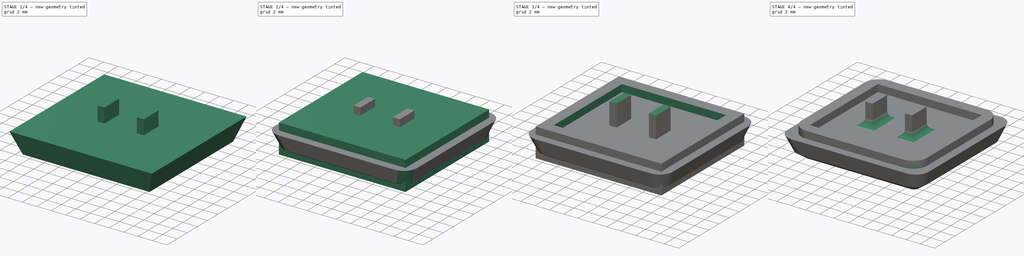
[diagram: build sequence overview — one tinted view per stage of 4, left to right]
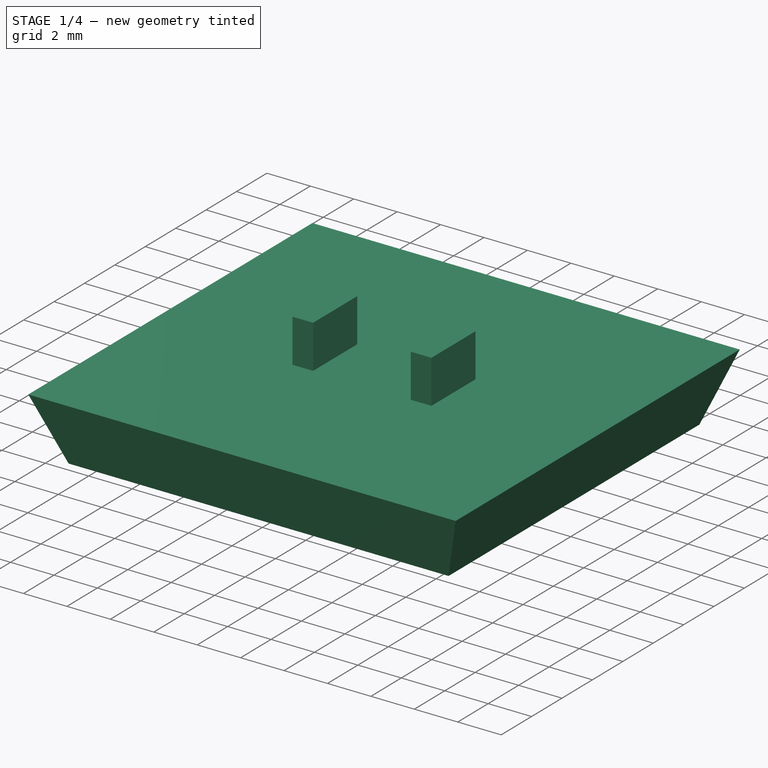
[diagram: stage 1 of 4 — iso view after this stage's code; geometry added in this stage tinted green]
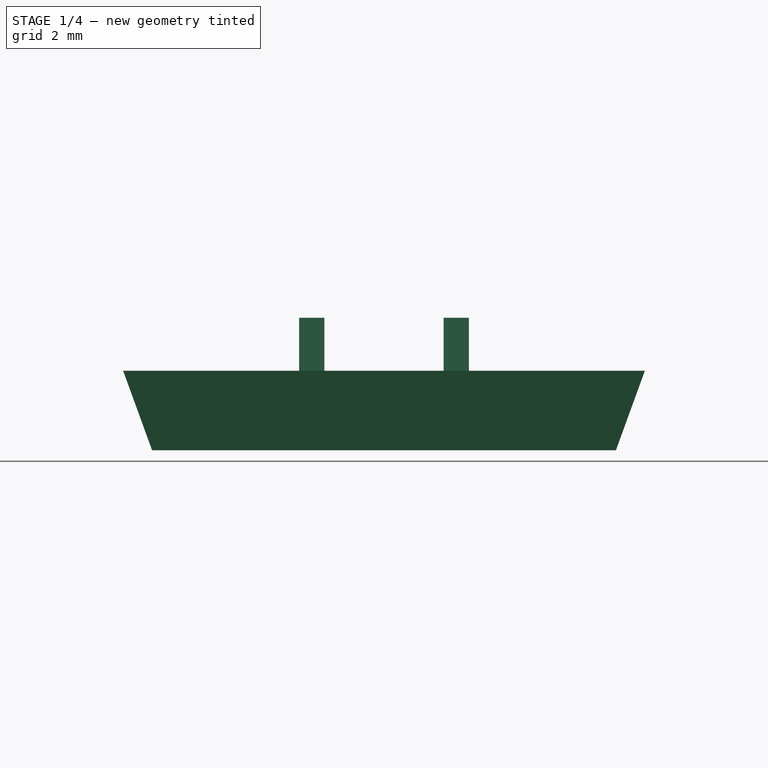
[diagram: stage 1 of 4 — front view after this stage's code; geometry added in this stage tinted green]
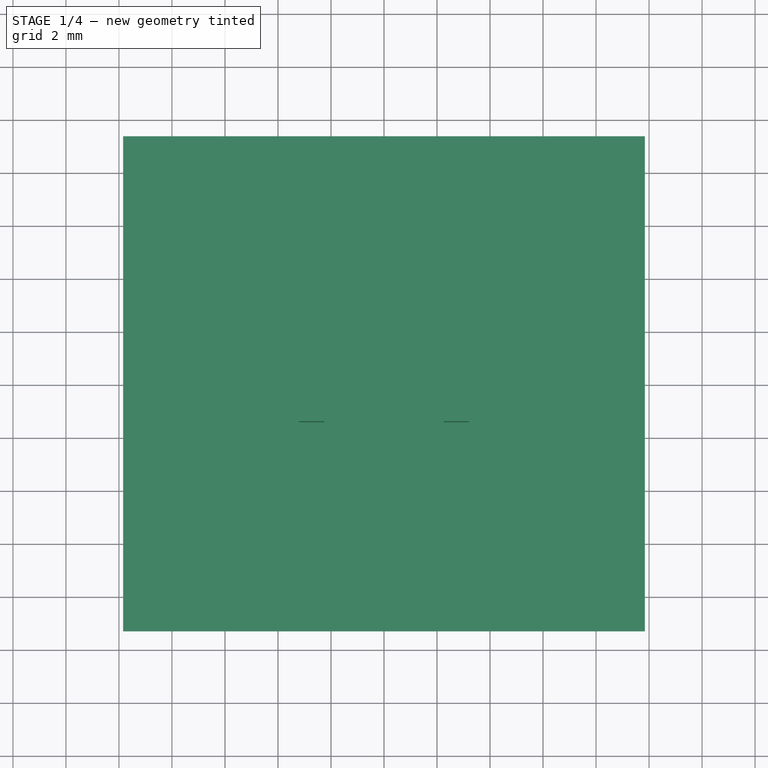
[diagram: stage 1 of 4 — top view after this stage's code; geometry added in this stage tinted green]
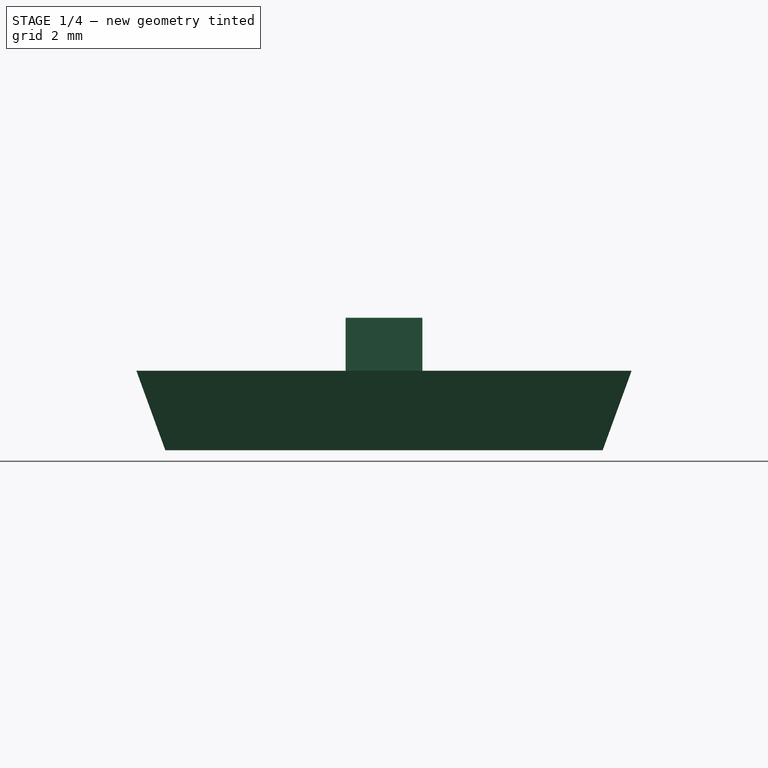
[diagram: stage 1 of 4 — right view after this stage's code; geometry added in this stage tinted green]
FCSTD DOCUMENT  (FreeCAD 1.0R39109 (Git))
Label: choc_keycap
License: All rights reserved
LicenseURL: https://en.wikipedia.org/wiki/All_rights_reserved
objects: Sketcher::SketchObject×6, PartDesign::Pad×4, PartDesign::Fillet×3, PartDesign::ShapeBinder×3, PartDesign::Chamfer×2, PartDesign::Body×2, PartDesign::Pocket×1, PartDesign::Draft×1
note: 50 computed .brp shape members not serialized (recipe doc carries the construction recipe); baked Part::Feature solids carry a one-line shape summary decoded from their .brp

FEATURE [Sketcher::SketchObject] Sketch004
  ArcFitTolerance = 1e-06
  AttachmentSupport = -> [XY_Plane001]
  FullyConstrained = true
  MakeInternals = false
  MapMode = 5
  sketch-geometry (4):
    g0: LineSegment StartX=-8.75 StartY=8.25 StartZ=0 EndX=-8.75 EndY=-8.25 EndZ=0
    g1: LineSegment StartX=-8.75 StartY=-8.25 StartZ=0 EndX=8.75 EndY=-8.25 EndZ=0
    g2: LineSegment StartX=8.75 StartY=-8.25 StartZ=0 EndX=8.75 EndY=8.25 EndZ=0
    g3: LineSegment StartX=8.75 StartY=8.25 StartZ=0 EndX=-8.75 EndY=8.25 EndZ=0
  constraints (10):
    c: Coincident(g0,g1)
    c: Coincident(g1,g2)
    c: Coincident(g2,g3)
    c: Coincident(g3,g0)
    c: Vertical(g2)
    c: Horizontal(g1)
    c: Distance(g0,g2) = 17.5
    c: Distance(g1,g3) = 16.5
    c: Symmetric(g0,g0,g-1)
    c: Symmetric(g0,g2,g-2)
FEATURE [PartDesign::Pad] Pad002
  Direction = (0,0,1)
  Length = 3
  Length2 = 10
  Profile = -> Sketch004
  ReferenceAxis = -> Sketch004 [N_Axis]
  Refine = true
  Suppressed = false
  Type = 0
FEATURE [PartDesign::ShapeBinder] ReferencePad002
  Placement = pos=(0,0,3) rot=(0,0,1;0rad)
  Support = -> [Pad002]
  TraceSupport = false
FEATURE [Sketcher::SketchObject] Sketch005
  ArcFitTolerance = 1e-06
  AttachmentSupport = -> [ReferencePad002]
  FullyConstrained = true
  MakeInternals = false
  MapMode = 5
  Placement = pos=(0,0,3) rot=(0,0,1;0rad)
FEATURE [PartDesign::ShapeBinder] CopyPad002
  Placement = pos=(0,0,3) rot=(0,0,1;0rad)
  TraceSupport = false
FEATURE [PartDesign::ShapeBinder] ReferencePad003
  Placement = pos=(0,0,3) rot=(0,0,1;0rad)
  Support = -> [Pad002]
  TraceSupport = false
FEATURE [PartDesign::Body] Body  label="complicated"
  AllowCompound = false
  Group = -> [Sketch,Pad,Sketch002,Pocket,Sketch003,Pad001,Fillet,Fillet001,Chamfer,ReferencePad002,Sketch005,CopyPad002,ReferencePad003]
  Origin = -> Origin
  Tip = -> Chamfer
FEATURE [Sketcher::SketchObject] Sketch006
  ArcFitTolerance = 1e-06
  AttachmentSupport = -> [Pad002]
  FullyConstrained = true
  MakeInternals = false
  MapMode = 5
  Placement = pos=(0,0,3) rot=(0,0,1;0rad)
  sketch-geometry (8):
    g0: LineSegment StartX=-3.2 StartY=1.45 StartZ=0 EndX=-3.2 EndY=-1.45 EndZ=0
    g1: LineSegment StartX=-3.2 StartY=-1.45 StartZ=0 EndX=-2.25 EndY=-1.45 EndZ=0
    g2: LineSegment StartX=-2.25 StartY=-1.45 StartZ=0 EndX=-2.25 EndY=1.45 EndZ=0
    g3: LineSegment StartX=-2.25 StartY=1.45 StartZ=0 EndX=-3.2 EndY=1.45 EndZ=0
    g4: LineSegment StartX=2.25 StartY=1.45 StartZ=0 EndX=2.25 EndY=-1.45 EndZ=0
    g5: LineSegment StartX=2.25 StartY=-1.45 StartZ=0 EndX=3.2 EndY=-1.45 EndZ=0
    g6: LineSegment StartX=3.2 StartY=-1.45 StartZ=0 EndX=3.2 EndY=1.45 EndZ=0
    g7: LineSegment StartX=3.2 StartY=1.45 StartZ=0 EndX=2.25 EndY=1.45 EndZ=0
  constraints (22):
    c: Coincident(g0,g1)
    c: Coincident(g1,g2)
    c: Coincident(g2,g3)
    c: Coincident(g3,g0)
    c: Vertical(g0)
    c: Horizontal(g1)
    c: Horizontal(g3)
    c: Distance(g0,g2) = 0.95
    c: Distance(g1,g3) = 2.9
    c: Coincident(g4,g5)
    c: Coincident(g5,g6)
    c: Coincident(g6,g7)
    c: Coincident(g7,g4)
    c: Vertical(g4)
    c: Vertical(g6)
    c: Horizontal(g5)
    c: Horizontal(g7)
    c: Distance(g4,g6) = 0.95
    c: Distance(g5,g7) = 2.9
    c: DistanceX(g2,g4) = 4.5
    c: Symmetric(g2,g1,g-1)
    c: Symmetric(g2,g4,g-2)
FEATURE [PartDesign::Pad] Pad003
  BaseFeature = -> Pad002
  Direction = (0,0,1)
  Length = 2
  Length2 = 10
  Profile = -> Sketch006
  ReferenceAxis = -> Sketch006 [N_Axis]
  Refine = true
  Suppressed = false
  Type = 0
FEATURE [PartDesign::Draft] Draft
  Angle = 20
  Base = -> Pad003 [Face1,Face3,Face6,Face2]
  BaseFeature = -> Pad003
  NeutralPlane = -> Pad003 [Face4]
  Refine = true
  Reversed = true
  SupportTransform = false
  Suppressed = false
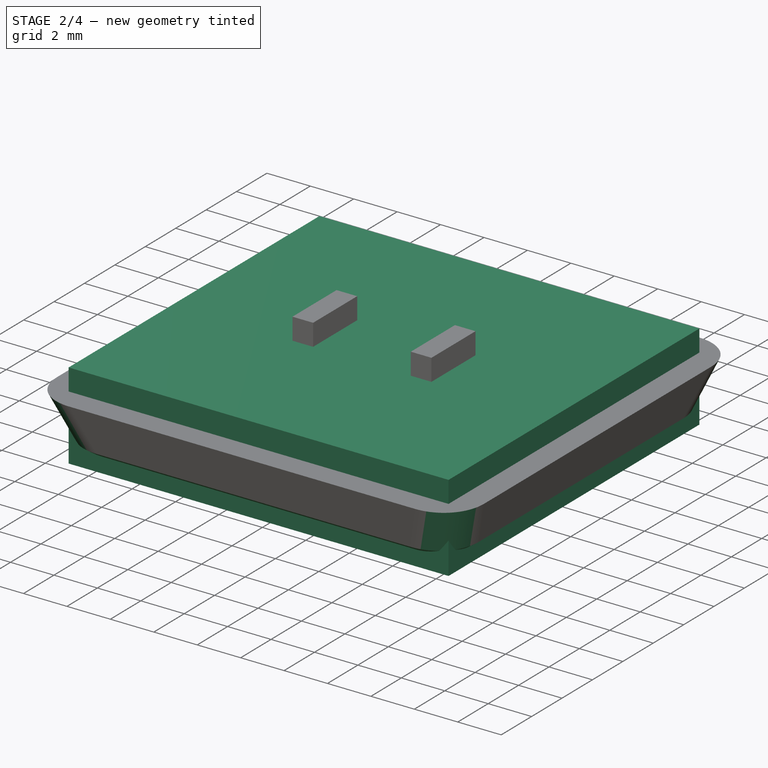
[diagram: stage 2 of 4 — iso view after this stage's code; geometry added in this stage tinted green]
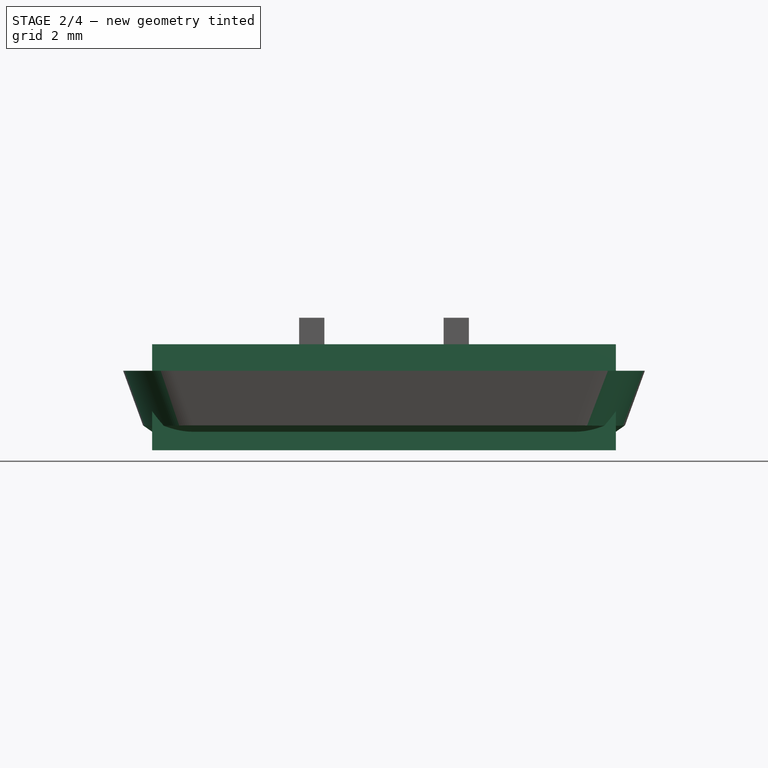
[diagram: stage 2 of 4 — front view after this stage's code; geometry added in this stage tinted green]
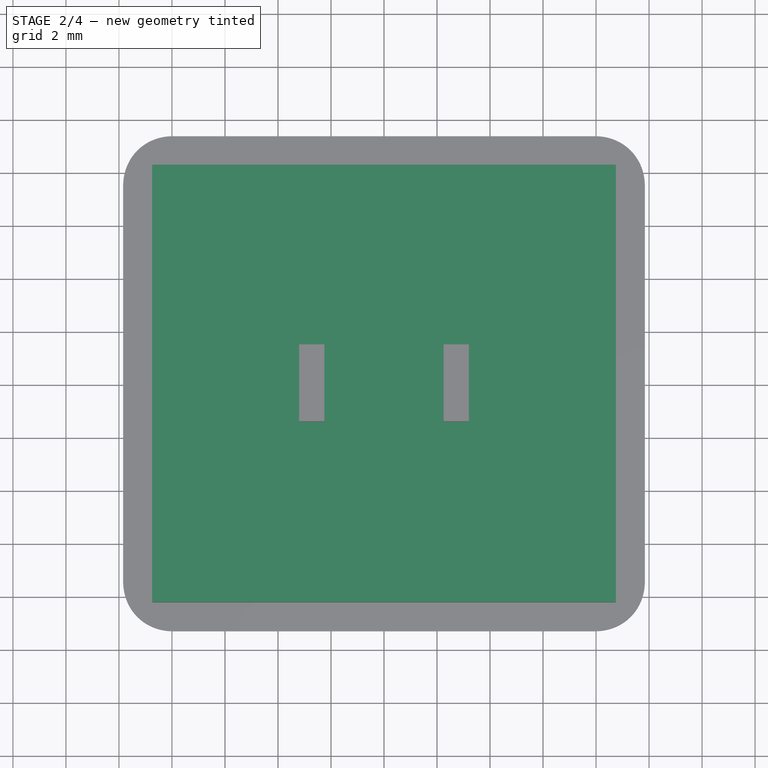
[diagram: stage 2 of 4 — top view after this stage's code; geometry added in this stage tinted green]
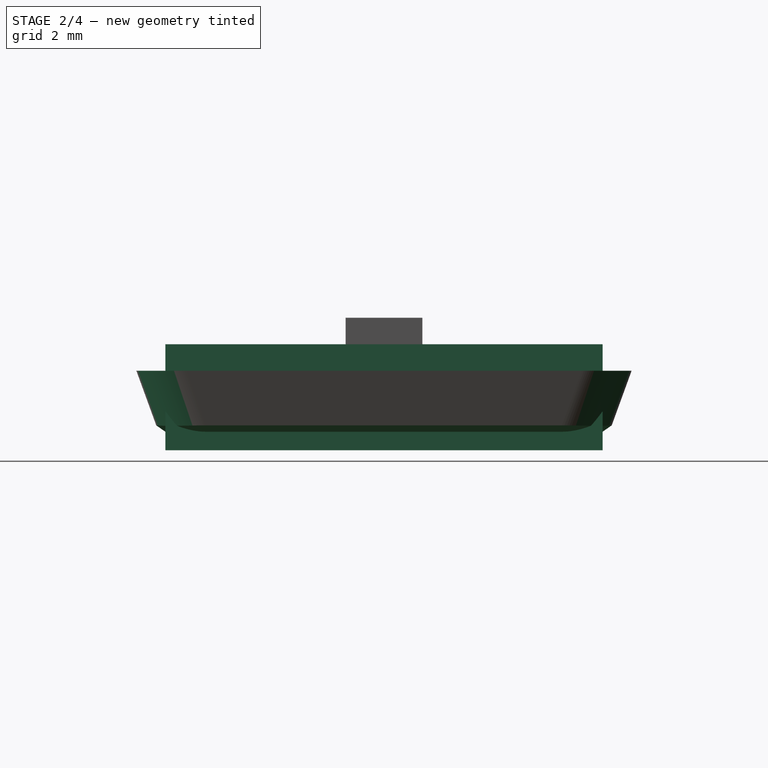
[diagram: stage 2 of 4 — right view after this stage's code; geometry added in this stage tinted green]
FEATURE [Sketcher::SketchObject] Sketch
  ArcFitTolerance = 1e-06
  AttachmentSupport = -> [XY_Plane]
  FullyConstrained = true
  MakeInternals = false
  MapMode = 5
  sketch-geometry (4):
    g0: LineSegment StartX=-8.75 StartY=8.25 StartZ=0 EndX=-8.75 EndY=-8.25 EndZ=0
    g1: LineSegment StartX=-8.75 StartY=-8.25 StartZ=0 EndX=8.75 EndY=-8.25 EndZ=0
    g2: LineSegment StartX=8.75 StartY=-8.25 StartZ=0 EndX=8.75 EndY=8.25 EndZ=0
    g3: LineSegment StartX=8.75 StartY=8.25 StartZ=0 EndX=-8.75 EndY=8.25 EndZ=0
  constraints (10):
    c: Coincident(g0,g1)
    c: Coincident(g1,g2)
    c: Coincident(g2,g3)
    c: Coincident(g3,g0)
    c: Vertical(g2)
    c: Horizontal(g1)
    c: Distance(g0,g2) = 17.5
    c: Distance(g1,g3) = 16.5
    c: Symmetric(g0,g0,g-1)
    c: Symmetric(g0,g2,g-2)
FEATURE [PartDesign::Pad] Pad
  Direction = (0,0,1)
  Length = 4
  Length2 = 10
  Profile = -> Sketch
  ReferenceAxis = -> Sketch [N_Axis]
  Refine = true
  Suppressed = false
  Type = 0
FEATURE [PartDesign::Fillet] Fillet002
  Base = -> Draft [Edge2,Edge8,Edge5,Edge1]
  BaseFeature = -> Draft
  Radius = 2
  Refine = true
  SupportTransform = false
  Suppressed = false
  UseAllEdges = false
FEATURE [PartDesign::Chamfer] Chamfer001
  Angle = 45
  Base = -> Fillet002 [Face2]
  BaseFeature = -> Fillet002
  ChamferType = 0
  FlipDirection = false
  Refine = true
  Size = 1
  Size2 = 1
  SupportTransform = false
  Suppressed = false
  UseAllEdges = false
FEATURE [PartDesign::Body] Body001  label="simple"
  AllowCompound = false
  Group = -> [Sketch004,Pad002,Sketch006,Pad003,Draft,Fillet002,Chamfer001]
  Origin = -> Origin001
  Tip = -> Chamfer001
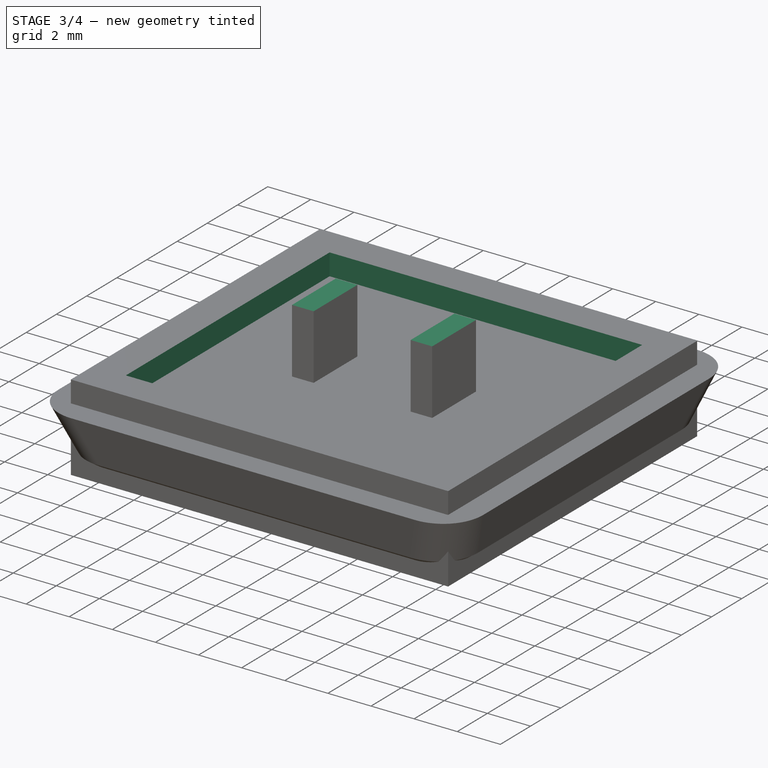
[diagram: stage 3 of 4 — iso view after this stage's code; geometry added in this stage tinted green]
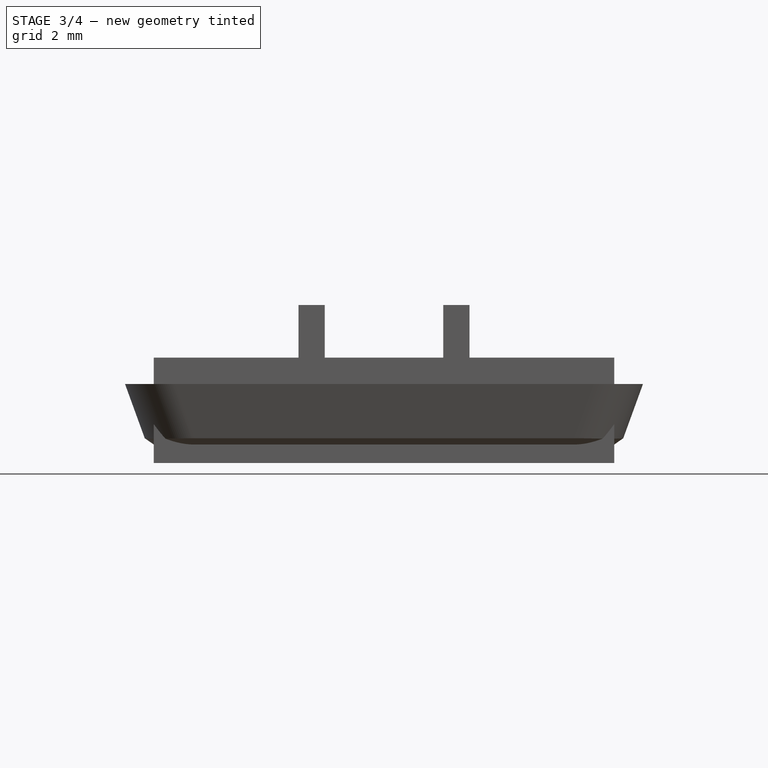
[diagram: stage 3 of 4 — front view after this stage's code; geometry added in this stage tinted green]
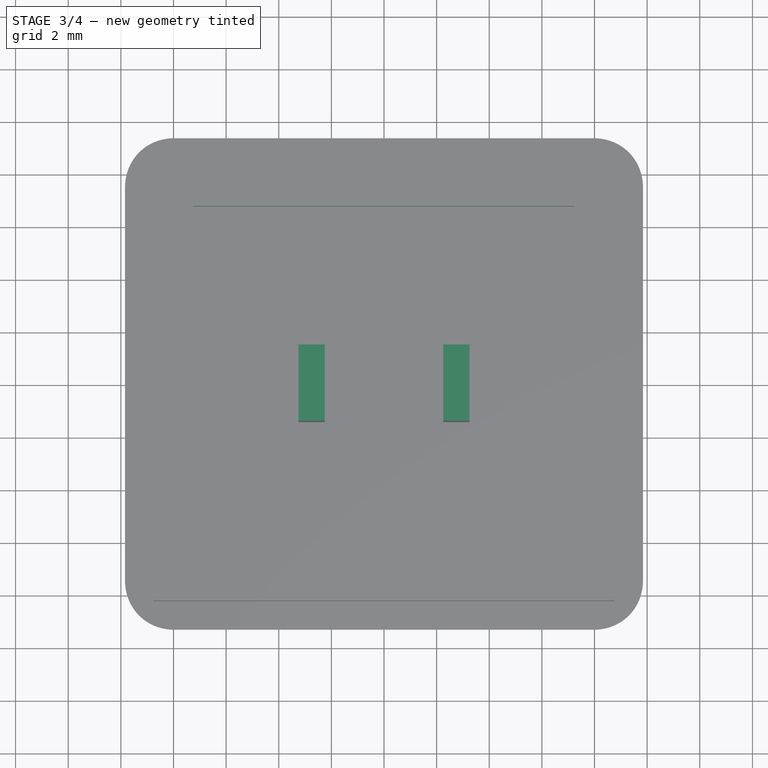
[diagram: stage 3 of 4 — top view after this stage's code; geometry added in this stage tinted green]
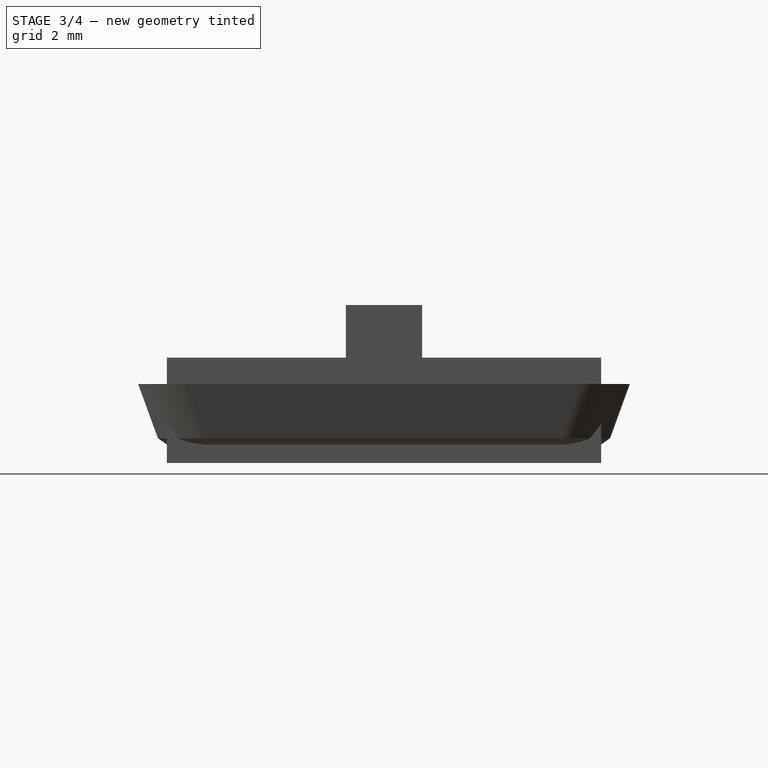
[diagram: stage 3 of 4 — right view after this stage's code; geometry added in this stage tinted green]
FEATURE [Sketcher::SketchObject] Sketch002
  ArcFitTolerance = 1e-06
  FullyConstrained = true
  MakeInternals = false
  MapMode = 5
  Placement = pos=(0,0,3) rot=(0,0,1;0rad)
  sketch-geometry (4):
    g0: LineSegment StartX=-7.25 StartY=6.75 StartZ=0 EndX=-7.25 EndY=-6.75 EndZ=0
    g1: LineSegment StartX=-7.25 StartY=-6.75 StartZ=0 EndX=7.25 EndY=-6.75 EndZ=0
    g2: LineSegment StartX=7.25 StartY=-6.75 StartZ=0 EndX=7.25 EndY=6.75 EndZ=0
    g3: LineSegment StartX=7.25 StartY=6.75 StartZ=0 EndX=-7.25 EndY=6.75 EndZ=0
  constraints (10):
    c: Coincident(g0,g1)
    c: Coincident(g1,g2)
    c: Coincident(g2,g3)
    c: Coincident(g3,g0)
    c: Vertical(g2)
    c: Horizontal(g1)
    c: Distance(g0,g2) = 14.5
    c: Distance(g1,g3) = 13.5
    c: Symmetric(g0,g0,g-1)
    c: Symmetric(g0,g2,g-2)
FEATURE [PartDesign::Pocket] Pocket
  BaseFeature = -> Pad
  Direction = (0,0,-1)
  Length = 5
  Length2 = 5
  Profile = -> Sketch002
  ReferenceAxis = -> Sketch002 [N_Axis]
  Refine = true
  Reversed = true
  Suppressed = false
  Type = 0
FEATURE [Sketcher::SketchObject] Sketch003
  ArcFitTolerance = 1e-06
  AttachmentSupport = -> [Pocket]
  FullyConstrained = true
  MakeInternals = false
  MapMode = 5
  Placement = pos=(0,0,3) rot=(0,0,1;0rad)
  sketch-geometry (8):
    g0: LineSegment StartX=-3.25 StartY=1.45 StartZ=0 EndX=-3.25 EndY=-1.45 EndZ=0
    g1: LineSegment StartX=-3.25 StartY=-1.45 StartZ=0 EndX=-2.25 EndY=-1.45 EndZ=0
    g2: LineSegment StartX=-2.25 StartY=-1.45 StartZ=0 EndX=-2.25 EndY=1.45 EndZ=0
    g3: LineSegment StartX=-2.25 StartY=1.45 StartZ=0 EndX=-3.25 EndY=1.45 EndZ=0
    g4: LineSegment StartX=2.25 StartY=1.45 StartZ=0 EndX=2.25 EndY=-1.45 EndZ=0
    g5: LineSegment StartX=2.25 StartY=-1.45 StartZ=0 EndX=3.25 EndY=-1.45 EndZ=0
    g6: LineSegment StartX=3.25 StartY=-1.45 StartZ=0 EndX=3.25 EndY=1.45 EndZ=0
    g7: LineSegment StartX=3.25 StartY=1.45 StartZ=0 EndX=2.25 EndY=1.45 EndZ=0
  constraints (22):
    c: Coincident(g0,g1)
    c: Coincident(g1,g2)
    c: Coincident(g2,g3)
    c: Coincident(g3,g0)
    c: Vertical(g2)
    c: Horizontal(g1)
    c: Horizontal(g3)
    c: Distance(g0,g2) = 1
    c: Distance(g1,g3) = 2.9
    c: Coincident(g4,g5)
    c: Coincident(g5,g6)
    c: Coincident(g6,g7)
    c: Coincident(g7,g4)
    c: Vertical(g4)
    c: Vertical(g6)
    c: Horizontal(g5)
    c: Horizontal(g7)
    c: Distance(g4,g6) = 1
    c: Distance(g5,g7) = 2.9
    c: DistanceX(g2,g4) = 4.5
    c: Symmetric(g0,g0,g-1)
    c: Symmetric(g2,g4,g-2)
FEATURE [PartDesign::Pad] Pad001
  BaseFeature = -> Pocket
  Direction = (0,0,1)
  Length = 3
  Length2 = 10
  Profile = -> Sketch003
  ReferenceAxis = -> Sketch003 [N_Axis]
  Refine = true
  Suppressed = false
  Type = 0
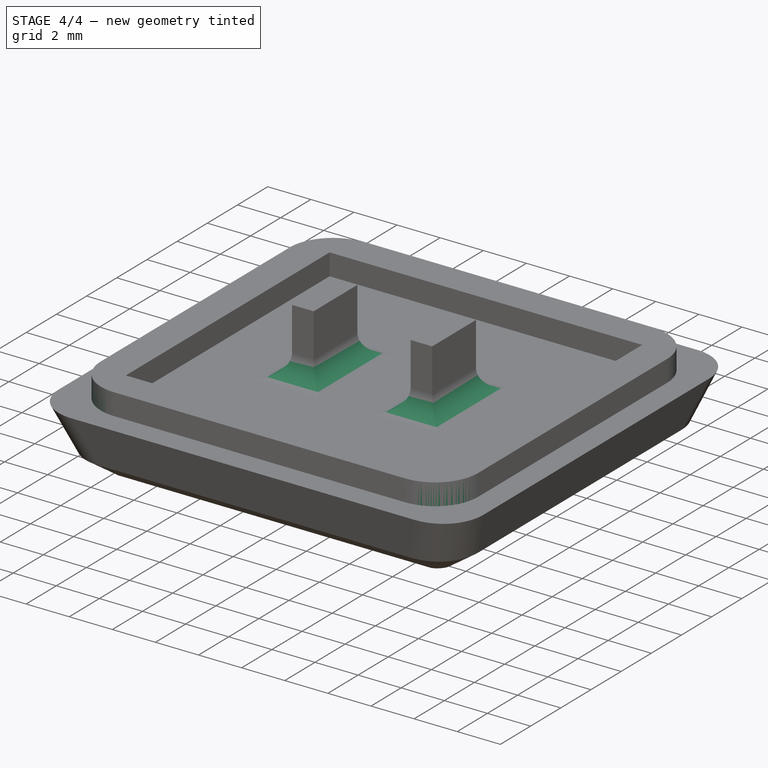
[diagram: stage 4 of 4 — iso view after this stage's code; geometry added in this stage tinted green]
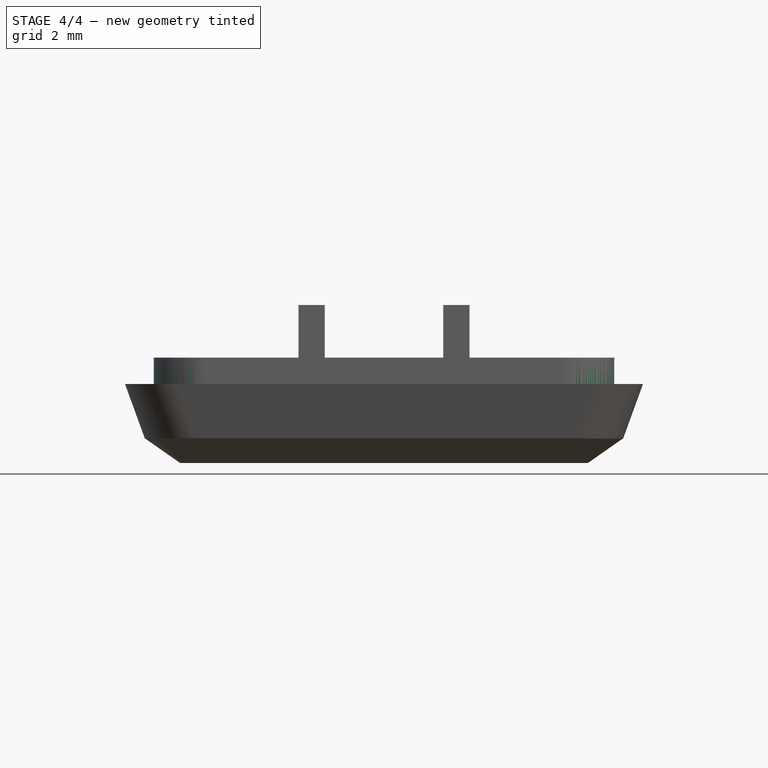
[diagram: stage 4 of 4 — front view after this stage's code; geometry added in this stage tinted green]
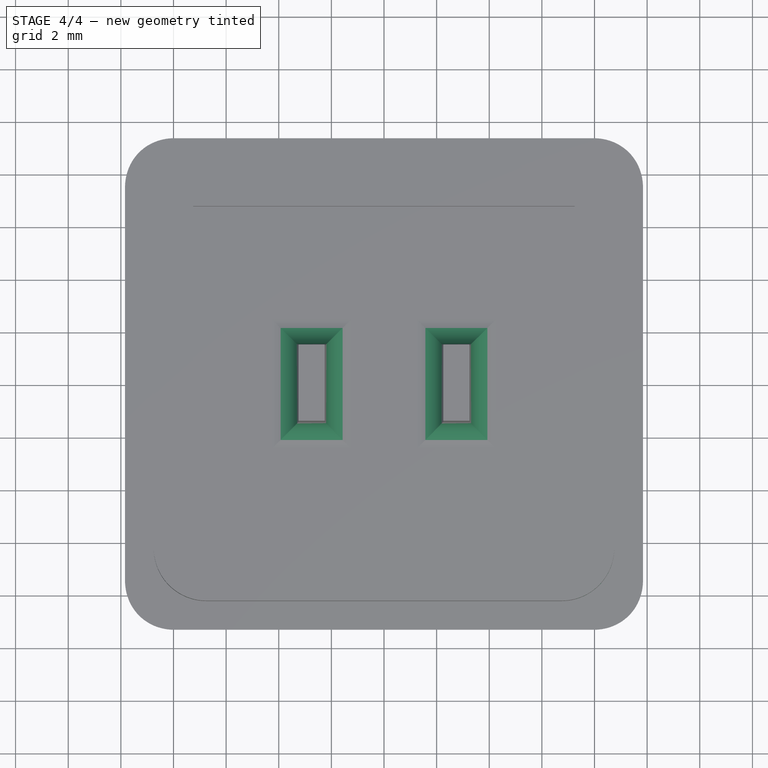
[diagram: stage 4 of 4 — top view after this stage's code; geometry added in this stage tinted green]
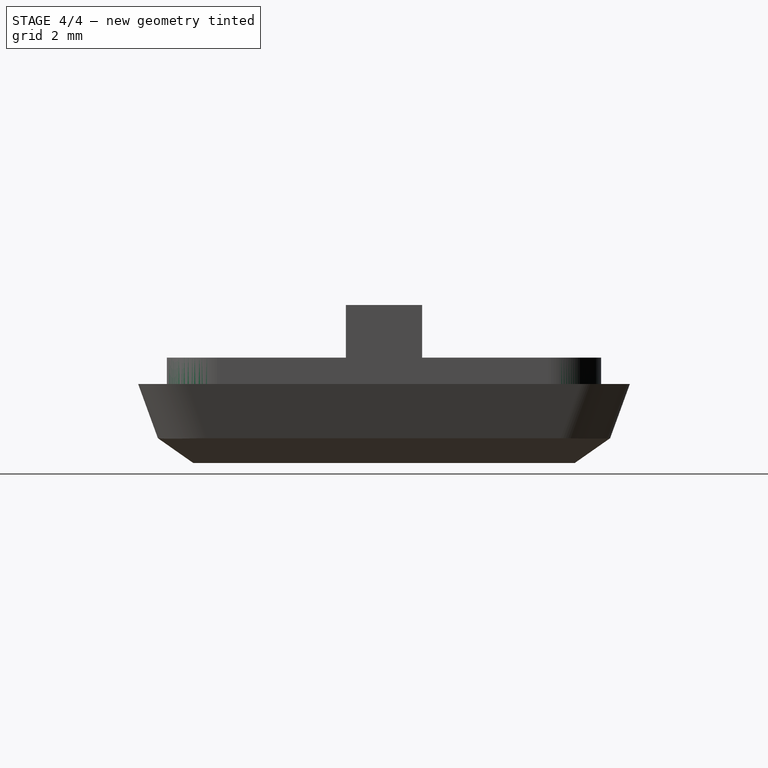
[diagram: stage 4 of 4 — right view after this stage's code; geometry added in this stage tinted green]
FEATURE [PartDesign::Fillet] Fillet
  Base = -> Pad001 [Edge32,Edge31,Edge30,Edge29,Edge28,Edge25,Edge26,Edge27]
  BaseFeature = -> Pad001
  Radius = 1
  Refine = true
  SupportTransform = false
  Suppressed = false
  UseAllEdges = false
FEATURE [PartDesign::Fillet] Fillet001
  Base = -> Fillet [Edge57,Edge60,Edge62,Edge58]
  BaseFeature = -> Fillet
  Radius = 2
  Refine = true
  SupportTransform = false
  Suppressed = false
  UseAllEdges = false
FEATURE [PartDesign::Chamfer] Chamfer
  Angle = 45
  Base = -> Fillet001 [Face14]
  BaseFeature = -> Fillet001
  ChamferType = 0
  FlipDirection = false
  Refine = true
  Size = 1
  Size2 = 1
  SupportTransform = false
  Suppressed = false
  UseAllEdges = false
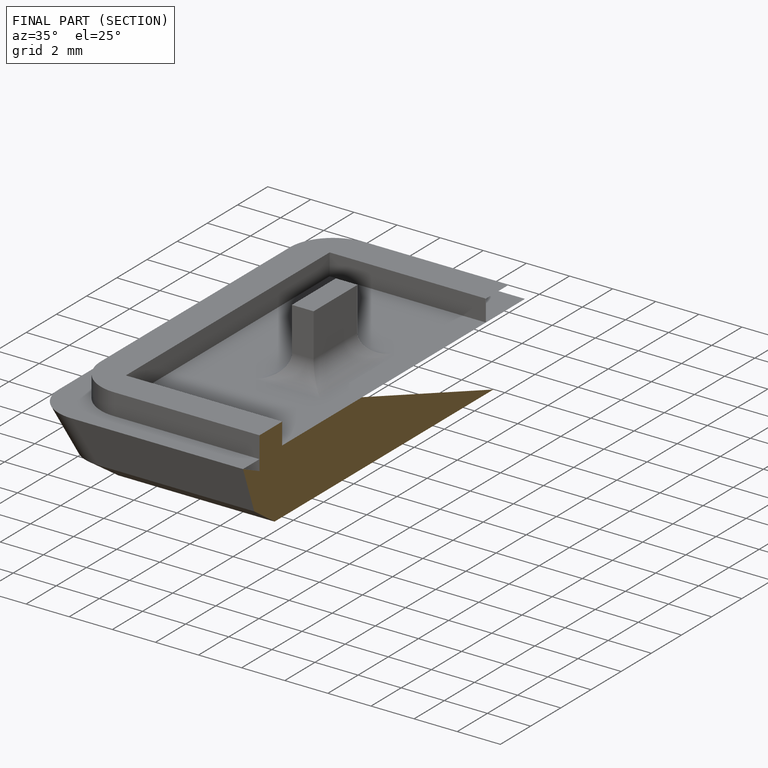
[diagram: finished part — half-section view (interior)]
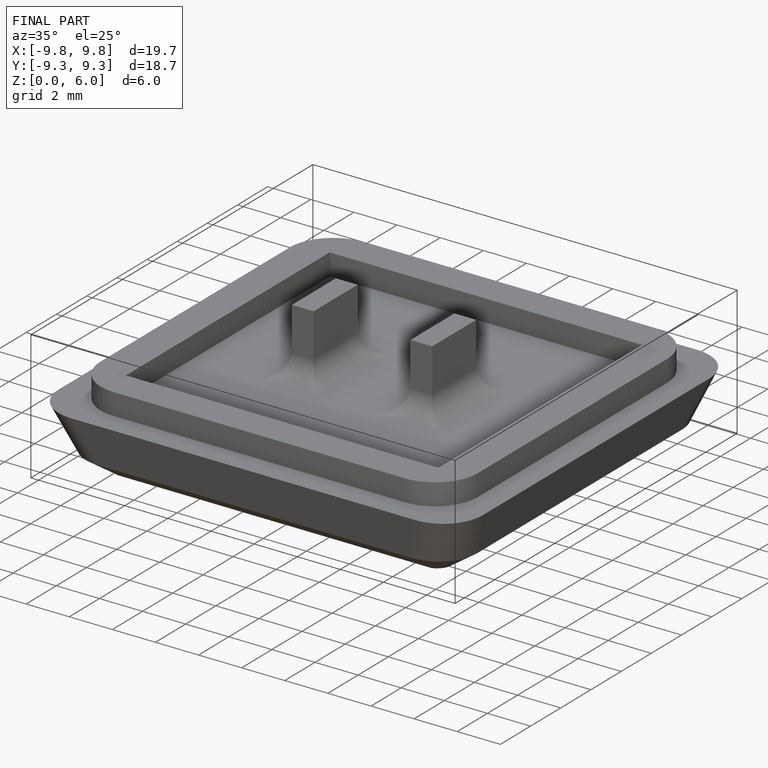
[diagram: finished part — iso view with bounding-box wireframe]
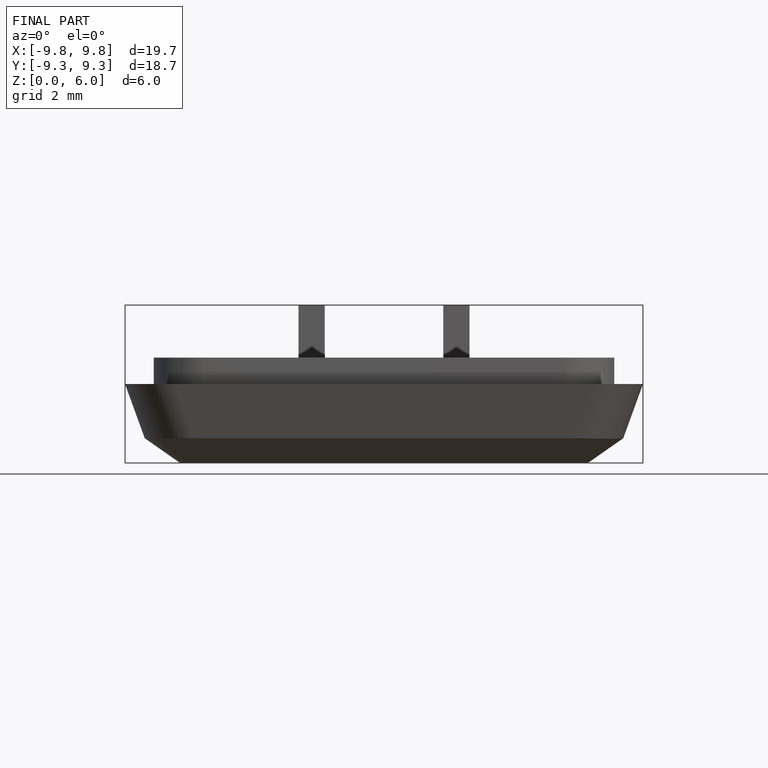
[diagram: finished part — front view with bounding-box wireframe]
